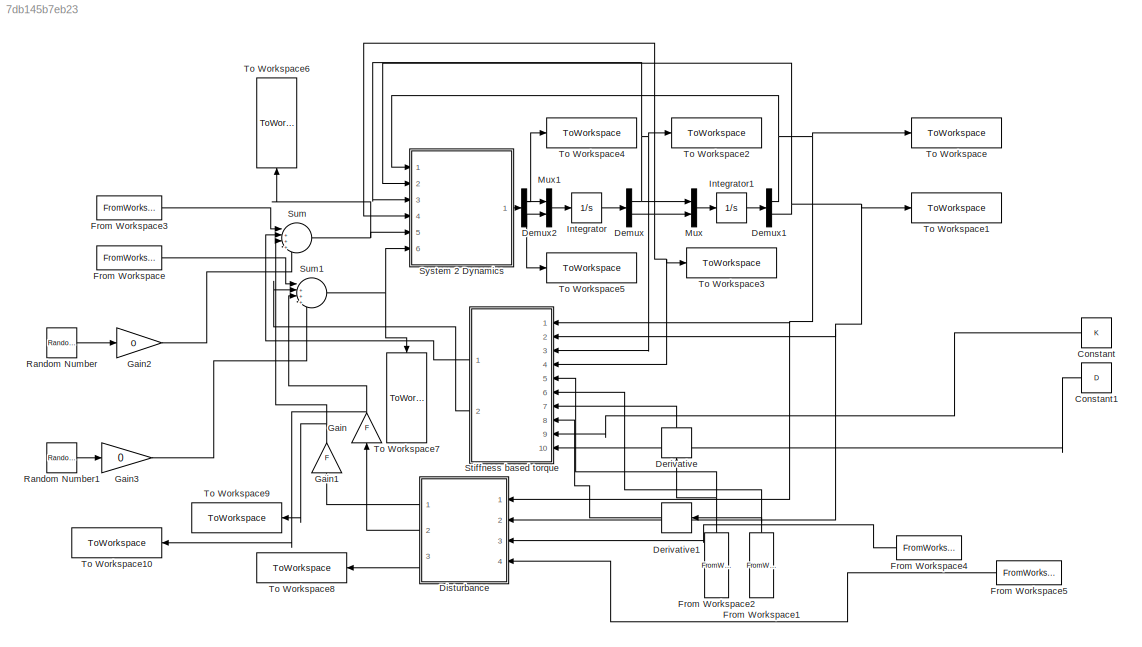
MODEL slx_7db145b7eb23
KIND model
CONFIG AbsTol = auto
CONFIG EnableMultiTasking = off
CONFIG FixedStep = dt
CONFIG MaxStep = auto
CONFIG MinStep = auto
CONFIG RelTol = 1e-3
CONFIG SampleTimeConstraint = Unconstrained
CONFIG SolverName = ode4
CONFIG StartTime = 0.0
CONFIG StopTime = max(t2)
BLOCK [Constant] Constant
  NameLocation = top
  Value = K
BLOCK [Constant] Constant1
  NameLocation = top
  Value = D
BLOCK [Demux] Demux
  Outputs = 2
  Ports = [1, 2]
BLOCK [Demux] Demux1
  Outputs = 2
  Ports = [1, 2]
BLOCK [Demux] Demux2
  Outputs = 2
  Ports = [1, 2]
BLOCK [Derivative] Derivative
  NameLocation = right
BLOCK [Derivative] Derivative1
  NameLocation = top
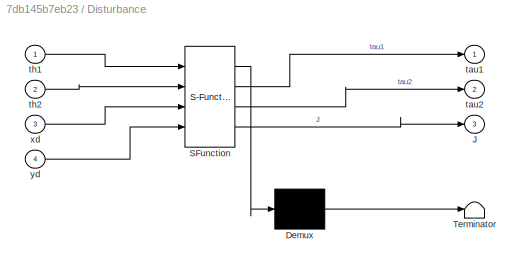
BLOCK [SubSystem] Disturbance
  ErrorFcn = Stateflow.Translate.translate
  NameLocation = top
  PermitHierarchicalResolution = ExplicitOnly
  Ports = [4, 3]
  RequestExecContextInheritance = off
  SFBlockType = MATLAB Function
  TreatAsAtomicUnit = on
BLOCK [Demux] Disturbance/ Demux 
  Outputs = 1
  Ports = [1, 1]
BLOCK [S-Function] Disturbance/ SFunction 
  EnableBusSupport = on
  FunctionName = sf_sfun
  PortCounts = [4 4]
  Ports = [4, 4]
  SFcnIsStateOwnerBlock = off
  SFunctionDeploymentMode = off
  Tag = Stateflow S-Function 3
BLOCK [Terminator] Disturbance/ Terminator 
BLOCK [Outport] Disturbance/J
  Port = 3
BLOCK [Outport] Disturbance/tau1
BLOCK [Outport] Disturbance/tau2
  Port = 2
BLOCK [Inport] Disturbance/th1
BLOCK [Inport] Disturbance/th2
  Port = 2
BLOCK [Inport] Disturbance/xd
  Port = 3
BLOCK [Inport] Disturbance/yd
  Port = 4
BLOCK [FromWorkspace] From Workspace
  VariableName = TAU2
BLOCK [FromWorkspace] From Workspace1
  NameLocation = right
  VariableName = q2d
BLOCK [FromWorkspace] From Workspace2
  NameLocation = right
  VariableName = q1d
BLOCK [FromWorkspace] From Workspace3
  VariableName = TAU1
BLOCK [FromWorkspace] From Workspace4
  NameLocation = top
  VariableName = XD
BLOCK [FromWorkspace] From Workspace5
  NameLocation = top
  VariableName = YD
BLOCK [Gain] Gain
  Gain = F
  NameLocation = right
BLOCK [Gain] Gain1
  Gain = F
  NameLocation = right
BLOCK [Gain] Gain2
  Gain = 0
BLOCK [Gain] Gain3
  Gain = 0
BLOCK [Integrator] Integrator
  InitialCondition = [0;0]
  Ports = [1, 1]
BLOCK [Integrator] Integrator1
  InitialCondition = [th1i;th2i]
  Ports = [1, 1]
BLOCK [Mux] Mux
  DisplayOption = bar
  Inputs = 2
  Ports = [2, 1]
BLOCK [Mux] Mux1
  DisplayOption = bar
  Inputs = 2
  Ports = [2, 1]
BLOCK [RandomNumber] Random Number
  SampleTime = dt
  Variance = 2
BLOCK [RandomNumber] Random Number1
  SampleTime = dt
  Variance = 2
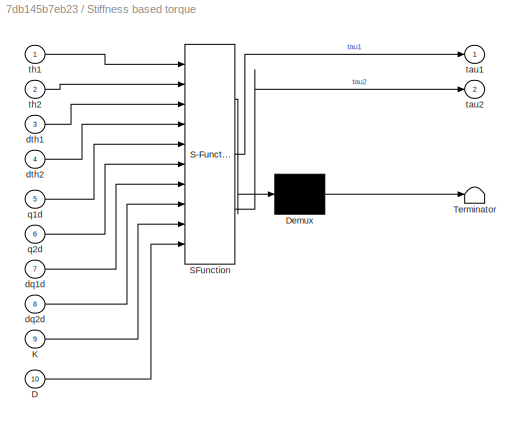
BLOCK [SubSystem] Stiffness based torque
  ErrorFcn = Stateflow.Translate.translate
  NameLocation = top
  PermitHierarchicalResolution = ExplicitOnly
  Ports = [10, 2]
  RequestExecContextInheritance = off
  SFBlockType = MATLAB Function
  TreatAsAtomicUnit = on
BLOCK [Demux] Stiffness based torque/ Demux 
  Outputs = 1
  Ports = [1, 1]
BLOCK [S-Function] Stiffness based torque/ SFunction 
  EnableBusSupport = on
  FunctionName = sf_sfun
  PortCounts = [10 3]
  Ports = [10, 3]
  SFcnIsStateOwnerBlock = off
  SFunctionDeploymentMode = off
  Tag = Stateflow S-Function 1
BLOCK [Terminator] Stiffness based torque/ Terminator 
BLOCK [Inport] Stiffness based torque/D
  Port = 10
BLOCK [Inport] Stiffness based torque/K
  Port = 9
BLOCK [Inport] Stiffness based torque/dq1d
  Port = 7
BLOCK [Inport] Stiffness based torque/dq2d
  Port = 8
BLOCK [Inport] Stiffness based torque/dth1
  Port = 3
BLOCK [Inport] Stiffness based torque/dth2
  Port = 4
BLOCK [Inport] Stiffness based torque/q1d
  Port = 5
BLOCK [Inport] Stiffness based torque/q2d
  Port = 6
BLOCK [Outport] Stiffness based torque/tau1
BLOCK [Outport] Stiffness based torque/tau2
  Port = 2
BLOCK [Inport] Stiffness based torque/th1
BLOCK [Inport] Stiffness based torque/th2
  Port = 2
BLOCK [Sum] Sum
  Inputs = |++++
  Ports = [4, 1]
BLOCK [Sum] Sum1
  Inputs = |++++
  Ports = [4, 1]
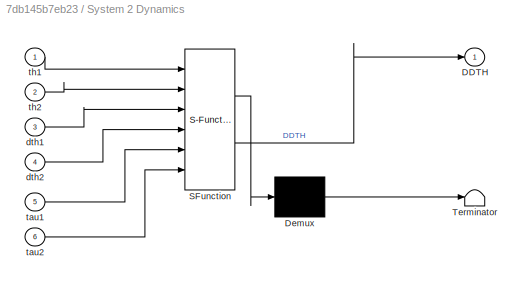
BLOCK [SubSystem] System 2 Dynamics
  ErrorFcn = Stateflow.Translate.translate
  PermitHierarchicalResolution = ExplicitOnly
  Ports = [6, 1]
  RequestExecContextInheritance = off
  SFBlockType = MATLAB Function
  TreatAsAtomicUnit = on
BLOCK [Demux] System 2 Dynamics/ Demux 
  Outputs = 1
  Ports = [1, 1]
BLOCK [S-Function] System 2 Dynamics/ SFunction 
  EnableBusSupport = on
  FunctionName = sf_sfun
  PortCounts = [6 2]
  Ports = [6, 2]
  SFcnIsStateOwnerBlock = off
  SFunctionDeploymentMode = off
  Tag = Stateflow S-Function 2
BLOCK [Terminator] System 2 Dynamics/ Terminator 
BLOCK [Outport] System 2 Dynamics/DDTH
BLOCK [Inport] System 2 Dynamics/dth1
  Port = 3
BLOCK [Inport] System 2 Dynamics/dth2
  Port = 4
BLOCK [Inport] System 2 Dynamics/tau1
  Port = 5
BLOCK [Inport] System 2 Dynamics/tau2
  Port = 6
BLOCK [Inport] System 2 Dynamics/th1
BLOCK [Inport] System 2 Dynamics/th2
  Port = 2
BLOCK [ToWorkspace] To Workspace
  FixptAsFi = on
  MaxDataPoints = inf
  Ports = [1]
  SampleTime = -1
  SaveFormat = Timeseries
  VariableName = TH1
BLOCK [ToWorkspace] To Workspace1
  FixptAsFi = on
  MaxDataPoints = inf
  Ports = [1]
  SampleTime = -1
  SaveFormat = Timeseries
  VariableName = TH2
BLOCK [ToWorkspace] To Workspace10
  FixptAsFi = on
  MaxDataPoints = inf
  NameLocation = top
  Ports = [1]
  SampleTime = -1
  SaveFormat = Timeseries
  VariableName = dTAU2
BLOCK [ToWorkspace] To Workspace2
  FixptAsFi = on
  MaxDataPoints = inf
  Ports = [1]
  SampleTime = -1
  SaveFormat = Timeseries
  VariableName = dTH1
BLOCK [ToWorkspace] To Workspace3
  FixptAsFi = on
  MaxDataPoints = inf
  Ports = [1]
  SampleTime = -1
  SaveFormat = Timeseries
  VariableName = dTH2
BLOCK [ToWorkspace] To Workspace4
  FixptAsFi = on
  MaxDataPoints = inf
  Ports = [1]
  SampleTime = -1
  SaveFormat = Timeseries
  VariableName = ddTH1
BLOCK [ToWorkspace] To Workspace5
  FixptAsFi = on
  MaxDataPoints = inf
  Ports = [1]
  SampleTime = -1
  SaveFormat = Timeseries
  VariableName = ddTH2
BLOCK [ToWorkspace] To Workspace6
  FixptAsFi = on
  MaxDataPoints = inf
  NameLocation = right
  Ports = [1]
  SampleTime = -1
  SaveFormat = Timeseries
  VariableName = tau1
BLOCK [ToWorkspace] To Workspace7
  FixptAsFi = on
  MaxDataPoints = inf
  NameLocation = left
  Ports = [1]
  SampleTime = -1
  SaveFormat = Timeseries
  VariableName = tau2
BLOCK [ToWorkspace] To Workspace8
  FixptAsFi = on
  MaxDataPoints = inf
  NameLocation = top
  Ports = [1]
  SampleTime = -1
  SaveFormat = Timeseries
  VariableName = J
BLOCK [ToWorkspace] To Workspace9
  FixptAsFi = on
  MaxDataPoints = inf
  NameLocation = top
  Ports = [1]
  SampleTime = -1
  SaveFormat = Timeseries
  VariableName = dTAU1
LINE Constant1:1 -> Stiffness based torque:10
LINE Constant:1 -> Stiffness based torque:9
NET Demux1:1 -> Disturbance:1, Stiffness based torque:1, System 2 Dynamics:1, To Workspace:1
NET Demux1:2 -> Disturbance:2, Stiffness based torque:2, System 2 Dynamics:2, To Workspace1:1
NET Demux2:1 -> Mux1:1, To Workspace4:1
NET Demux2:2 -> Mux1:2, To Workspace5:1
NET Demux:1 -> Mux:1, Stiffness based torque:3, System 2 Dynamics:3, To Workspace2:1
NET Demux:2 -> Mux:2, Stiffness based torque:4, System 2 Dynamics:4, To Workspace3:1
LINE Derivative1:1 -> Stiffness based torque:8
LINE Derivative:1 -> Stiffness based torque:7
LINE Disturbance:1 -> Gain1:1
LINE Disturbance:2 -> Gain:1
LINE Disturbance:3 -> To Workspace8:1
NET From Workspace1:1 -> Derivative1:1, Stiffness based torque:6
NET From Workspace2:1 -> Derivative:1, Stiffness based torque:5
LINE From Workspace3:1 -> Sum:1
LINE From Workspace4:1 -> Disturbance:3
LINE From Workspace5:1 -> Disturbance:4
LINE From Workspace:1 -> Sum1:1
NET Gain1:1 -> Sum:3, To Workspace9:1
LINE Gain2:1 -> Sum:4
LINE Gain3:1 -> Sum1:4
NET Gain:1 -> Sum1:3, To Workspace10:1
LINE Integrator1:1 -> Demux1:1
LINE Integrator:1 -> Demux:1
LINE Mux1:1 -> Integrator:1
LINE Mux:1 -> Integrator1:1
LINE Random Number1:1 -> Gain3:1
LINE Random Number:1 -> Gain2:1
LINE Stiffness based torque:1 -> Sum:2
LINE Stiffness based torque:2 -> Sum1:2
NET Sum1:1 -> System 2 Dynamics:6, To Workspace7:1
NET Sum:1 -> System 2 Dynamics:5, To Workspace6:1
LINE System 2 Dynamics:1 -> Demux2:1
note: NET lines group one-source signal fan-out (src -> all destinations, sorted); 1:1 wires keep LINE
CHART Stiffness based torque states=1 transitions=1
  STATE_LABEL 'eML_blk_kernel()'
  STATE_LABEL 'SCRIPT:\nfunction [tau1,tau2] = fcn(th1,th2,dth1,dth2,q1d,q2d,dq1d,dq2d,K,D)\nq1e=q1d-th1;\nq2e=q2d-th2;\nqe=[q1e;q2e];\ndq1e=dq1d-dth1;\ndq2e=dq2d-dth2;\ndqe=[dq1e;dq2e];\nT=K*(qe)+D*dqe;\n\ntau1=1*T(1);\ntau2=1*T(2);\n'
CHART System 2 Dynamics states=1 transitions=1
  STATE_LABEL 'eML_blk_kernel()'
  STATE_LABEL 'SCRIPT:\nfunction DDTH = fcn(th1,th2,dth1,dth2,tau1,tau2)\n\n%%%%%%%%%%%%%%%%%%%%%%%\nm1 = 1 ;\nm2 = 1 ; g = 0 ;\nl1 = 1 ; lc1 = l1/2 ;\nl2 = 1 ; lc2 = l2/2 ;\nI1 = 1/12 ; I2 = 1/12 ;\nb1=0.5;\nb2=0.5;\n\n\n%%\nM = [m1*lc1^2 + m2*(l1^2+lc2^2+2*l1*lc2^2+2*l1*lc2*cos(th2)) + I1 + I2, m2*(lc2^2 + l1*lc2*cos(th2)) + I2;\n    m2*(lc2^2 + l1*lc2*cos(th2)) + I2, m2*lc2^2 + I2] ;\nC = [-m2*l1*lc2*sin(th2)*dth2, -m2*l1*lc...<+1218ch>'
CHART Disturbance states=1 transitions=1
  STATE_LABEL 'eML_blk_kernel()'
  STATE_LABEL "SCRIPT:\nfunction [tau1,tau2,J] = fcn(th1,th2,xd,yd)\nl1=1;\nl2=1;\nxc=l1*cos(th1)+l2*cos(th1+th2);\nyc=l1*sin(th1)+l2*sin(th1+th2);\nJ=[-l1*sin(th1)-l2*sin(th2),-l2*sin(th1+th2);l1*cos(th1)+l2*cos(th1+th2),l2*cos(th1+th2)];\nk1=-5;%20\nk2=-5;%20\nK=[k1 0;0 k2];\nth=0;\nR=[cos(th) -sin(th);sin(th) cos(th)];\nXe=[xd-xc;yd-yc];\nT=J'*K*R*Xe;\ntau1=T(1);\ntau2=T(2);"
CHART  states=0 transitions=0
CHART  states=0 transitions=0
CHART  states=0 transitions=0
